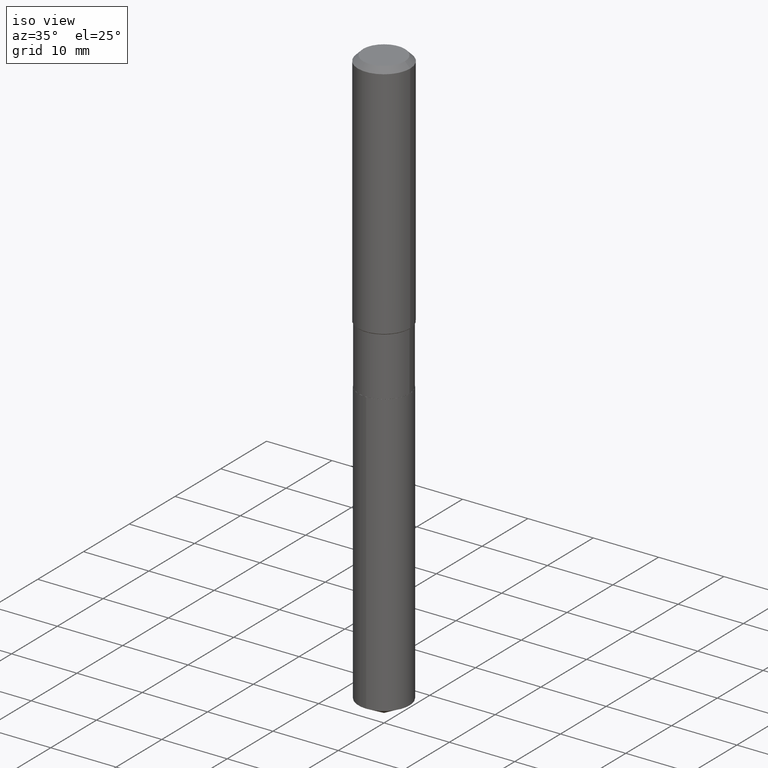
[diagram: clean part render]
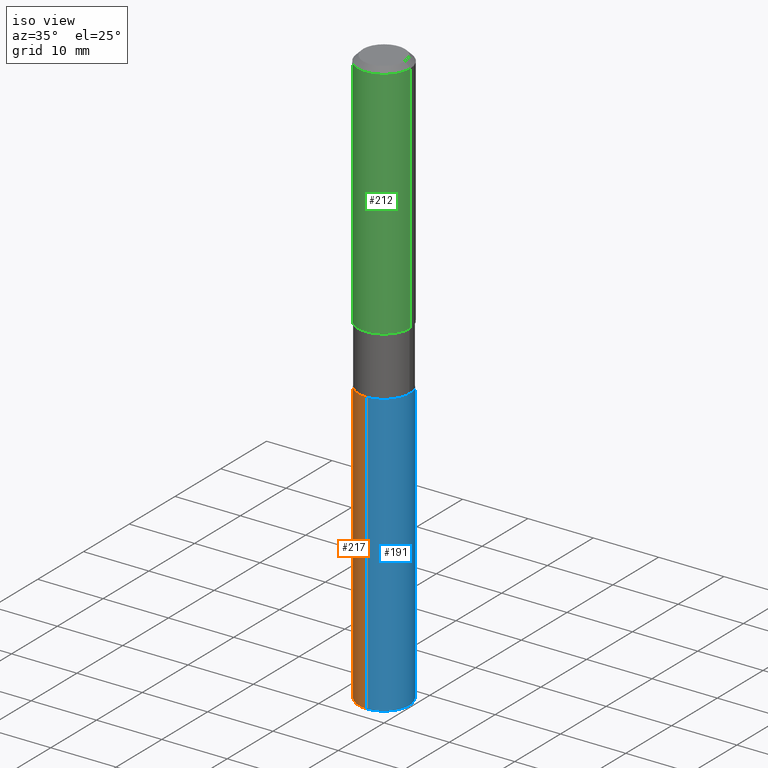
[diagram: same view with three faces highlighted in distinct colors, each labeled with its STEP entity id]
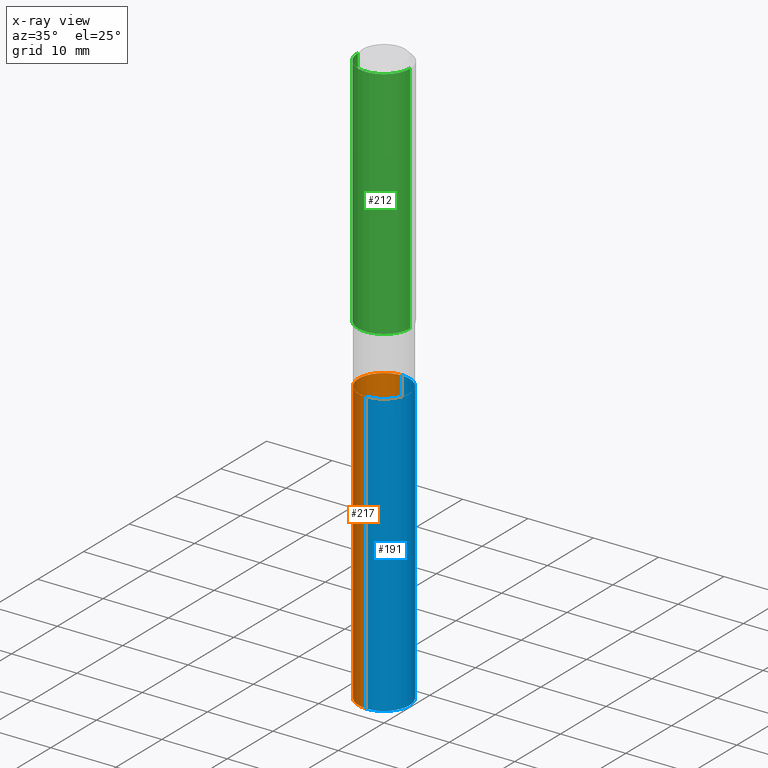
[diagram: x-ray of the same camera — body ghosted, the three highlighted faces saturated]
A machine part, iso view with three faces highlighted in distinct colors.
The next image is the same camera in x-ray (body ghosted, the three faces saturated) — at least one of them is partly hidden behind the body in this view.
Their STEP definitions:

[orange] entity #217 — the highlighted cylindrical surface (edge-blend (fillet) strip) has radius 3.9002 mm, axis along (-0, 0, 1).
#6 = DIRECTION ( 'NONE',  ( -2.445496404088996242E-29, 3.491441817074043371E-15, 1.000000000000000000 ) ) ;
#8 = AXIS2_PLACEMENT_3D ( 'NONE', #165, #206, #19 ) ;
#11 = LINE ( 'NONE', #198, #334 ) ;
#15 = EDGE_CURVE ( 'NONE', #282, #144, #66, .T. ) ;
#19 = DIRECTION ( 'NONE',  ( -6.982962677686265133E-15, -1.000000000000000000, 3.558252026915353702E-15 ) ) ;
#53 = CARTESIAN_POINT ( 'NONE',  ( -1.072233919158640357E-15, -0.1535500000000122045, -3.501056016768379742 ) ) ;
#66 = CIRCLE ( 'NONE', #297, 0.1535499999999999921 ) ;
#75 = AXIS2_PLACEMENT_3D ( 'NONE', #230, #6, #305 ) ;
#92 = CARTESIAN_POINT ( 'NONE',  ( -1.072233919158681970E-15, -0.1535500000000062926, -1.803199999999999470 ) ) ;
#99 = VERTEX_POINT ( 'NONE', #53 ) ;
#122 = LINE ( 'NONE', #160, #352 ) ;
#135 = ORIENTED_EDGE ( 'NONE', *, *, #240, .F. ) ;
#139 = EDGE_CURVE ( 'NONE', #99, #144, #11, .T. ) ;
#144 = VERTEX_POINT ( 'NONE', #92 ) ;
#147 = DIRECTION ( 'NONE',  ( -2.445496404088996242E-29, 3.491441817074043371E-15, 1.000000000000000000 ) ) ;
#151 = ORIENTED_EDGE ( 'NONE', *, *, #15, .F. ) ;
#158 = VERTEX_POINT ( 'NONE', #161 ) ;
#160 = CARTESIAN_POINT ( 'NONE',  ( 1.091038370759677758E-15, 0.1535499999999936915, -1.803200000000000580 ) ) ;
#161 = CARTESIAN_POINT ( 'NONE',  ( 1.091038370759719173E-15, 0.1535499999999877796, -3.501056016768380630 ) ) ;
#165 = CARTESIAN_POINT ( 'NONE',  ( 8.561770134980978882E-29, -1.222380464651785151E-14, -3.501056016768380186 ) ) ;
#189 = DIRECTION ( 'NONE',  ( -2.445496404088996242E-29, 3.491441817074043765E-15, 1.000000000000000000 ) ) ;
#198 = CARTESIAN_POINT ( 'NONE',  ( -1.072233919158681970E-15, -0.1535500000000062926, -1.803199999999999470 ) ) ;
#206 = DIRECTION ( 'NONE',  ( -2.445496404088996242E-29, 3.491441817074043371E-15, 1.000000000000000000 ) ) ;
#217 = ADVANCED_FACE ( 'NONE', ( #290 ), #425, .T. ) ;
#230 = CARTESIAN_POINT ( 'NONE',  ( 4.409669351313038346E-29, -6.295839150201959750E-15, -1.803200000000000136 ) ) ;
#237 = DIRECTION ( 'NONE',  ( -2.445496404088996242E-29, 3.491441817074043765E-15, 1.000000000000000000 ) ) ;
#240 = EDGE_CURVE ( 'NONE', #158, #282, #122, .T. ) ;
#277 = CIRCLE ( 'NONE', #8, 0.1535500000000000198 ) ;
#282 = VERTEX_POINT ( 'NONE', #449 ) ;
#290 = FACE_OUTER_BOUND ( 'NONE', #433, .T. ) ;
#297 = AXIS2_PLACEMENT_3D ( 'NONE', #369, #147, #411 ) ;
#305 = DIRECTION ( 'NONE',  ( -6.982962677686266711E-15, -1.000000000000000000, 3.558252026915354491E-15 ) ) ;
#329 = ORIENTED_EDGE ( 'NONE', *, *, #405, .T. ) ;
#334 = VECTOR ( 'NONE', #237, 39.37007874015748143 ) ;
#352 = VECTOR ( 'NONE', #189, 39.37007874015748143 ) ;
#366 = ORIENTED_EDGE ( 'NONE', *, *, #139, .T. ) ;
#369 = CARTESIAN_POINT ( 'NONE',  ( 4.409669351313038346E-29, -6.295839150201959750E-15, -1.803200000000000136 ) ) ;
#405 = EDGE_CURVE ( 'NONE', #158, #99, #277, .T. ) ;
#411 = DIRECTION ( 'NONE',  ( -6.982962677686266711E-15, -1.000000000000000000, 3.558252026915354491E-15 ) ) ;
#425 = CYLINDRICAL_SURFACE ( 'NONE', #75, 0.1535499999999999921 ) ;
#433 = EDGE_LOOP ( 'NONE', ( #135, #329, #366, #151 ) ) ;
#449 = CARTESIAN_POINT ( 'NONE',  ( 1.091038370759719765E-15, 0.1535499999999937193, -1.803200000000000580 ) ) ;

[blue] entity #191 — the highlighted cylindrical surface (edge-blend (fillet) strip) has radius 3.9002 mm, axis along (-0, 0, 1).
#11 = LINE ( 'NONE', #198, #334 ) ;
#42 = DIRECTION ( 'NONE',  ( -2.445496404088996242E-29, 3.491441817074043371E-15, 1.000000000000000000 ) ) ;
#52 = FACE_OUTER_BOUND ( 'NONE', #435, .T. ) ;
#53 = CARTESIAN_POINT ( 'NONE',  ( -1.072233919158640357E-15, -0.1535500000000122045, -3.501056016768379742 ) ) ;
#85 = EDGE_CURVE ( 'NONE', #99, #158, #221, .T. ) ;
#92 = CARTESIAN_POINT ( 'NONE',  ( -1.072233919158681970E-15, -0.1535500000000062926, -1.803199999999999470 ) ) ;
#95 = AXIS2_PLACEMENT_3D ( 'NONE', #270, #428, #423 ) ;
#99 = VERTEX_POINT ( 'NONE', #53 ) ;
#103 = ORIENTED_EDGE ( 'NONE', *, *, #240, .T. ) ;
#117 = DIRECTION ( 'NONE',  ( -2.445496404088996242E-29, 3.491441817074043371E-15, 1.000000000000000000 ) ) ;
#121 = ORIENTED_EDGE ( 'NONE', *, *, #293, .F. ) ;
#122 = LINE ( 'NONE', #160, #352 ) ;
#139 = EDGE_CURVE ( 'NONE', #99, #144, #11, .T. ) ;
#144 = VERTEX_POINT ( 'NONE', #92 ) ;
#158 = VERTEX_POINT ( 'NONE', #161 ) ;
#160 = CARTESIAN_POINT ( 'NONE',  ( 1.091038370759677758E-15, 0.1535499999999936915, -1.803200000000000580 ) ) ;
#161 = CARTESIAN_POINT ( 'NONE',  ( 1.091038370759719173E-15, 0.1535499999999877796, -3.501056016768380630 ) ) ;
#189 = DIRECTION ( 'NONE',  ( -2.445496404088996242E-29, 3.491441817074043765E-15, 1.000000000000000000 ) ) ;
#191 = ADVANCED_FACE ( 'NONE', ( #52 ), #464, .T. ) ;
#198 = CARTESIAN_POINT ( 'NONE',  ( -1.072233919158681970E-15, -0.1535500000000062926, -1.803199999999999470 ) ) ;
#221 = CIRCLE ( 'NONE', #288, 0.1535500000000000198 ) ;
#237 = DIRECTION ( 'NONE',  ( -2.445496404088996242E-29, 3.491441817074043765E-15, 1.000000000000000000 ) ) ;
#240 = EDGE_CURVE ( 'NONE', #158, #282, #122, .T. ) ;
#250 = ORIENTED_EDGE ( 'NONE', *, *, #139, .F. ) ;
#260 = DIRECTION ( 'NONE',  ( -6.982962677686265133E-15, -1.000000000000000000, 3.558252026915353702E-15 ) ) ;
#270 = CARTESIAN_POINT ( 'NONE',  ( 4.409669351313038346E-29, -6.295839150201959750E-15, -1.803200000000000136 ) ) ;
#282 = VERTEX_POINT ( 'NONE', #449 ) ;
#288 = AXIS2_PLACEMENT_3D ( 'NONE', #454, #117, #260 ) ;
#293 = EDGE_CURVE ( 'NONE', #144, #282, #427, .T. ) ;
#303 = ORIENTED_EDGE ( 'NONE', *, *, #85, .T. ) ;
#334 = VECTOR ( 'NONE', #237, 39.37007874015748143 ) ;
#345 = DIRECTION ( 'NONE',  ( -6.982962677686266711E-15, -1.000000000000000000, 3.558252026915354491E-15 ) ) ;
#352 = VECTOR ( 'NONE', #189, 39.37007874015748143 ) ;
#354 = AXIS2_PLACEMENT_3D ( 'NONE', #383, #42, #345 ) ;
#383 = CARTESIAN_POINT ( 'NONE',  ( 4.409669351313038346E-29, -6.295839150201959750E-15, -1.803200000000000136 ) ) ;
#423 = DIRECTION ( 'NONE',  ( -6.982962677686266711E-15, -1.000000000000000000, 3.558252026915354491E-15 ) ) ;
#427 = CIRCLE ( 'NONE', #354, 0.1535499999999999921 ) ;
#428 = DIRECTION ( 'NONE',  ( -2.445496404088996242E-29, 3.491441817074043371E-15, 1.000000000000000000 ) ) ;
#435 = EDGE_LOOP ( 'NONE', ( #303, #103, #121, #250 ) ) ;
#449 = CARTESIAN_POINT ( 'NONE',  ( 1.091038370759719765E-15, 0.1535499999999937193, -1.803200000000000580 ) ) ;
#454 = CARTESIAN_POINT ( 'NONE',  ( 8.561770134980978882E-29, -1.222380464651785151E-14, -3.501056016768380186 ) ) ;
#464 = CYLINDRICAL_SURFACE ( 'NONE', #95, 0.1535499999999999921 ) ;

[green] entity #212 — the highlighted cylindrical surface (edge-blend (fillet) strip) has radius 4.0005 mm, axis along (-0, 0, 1).
#5 = CARTESIAN_POINT ( 'NONE',  ( 0.1575000000000001676, -6.148673211769718717E-15, -1.446050000000000058 ) ) ;
#7 = VECTOR ( 'NONE', #409, 39.37007874015748143 ) ;
#10 = LINE ( 'NONE', #465, #388 ) ;
#14 = DIRECTION ( 'NONE',  ( 1.000000000000000000, -6.982962677686265922E-15, 0.000000000000000000 ) ) ;
#26 = ORIENTED_EDGE ( 'NONE', *, *, #393, .F. ) ;
#34 = DIRECTION ( 'NONE',  ( 1.000000000000000000, -6.982962677686267499E-15, 4.876176775795936353E-29 ) ) ;
#43 = AXIS2_PLACEMENT_3D ( 'NONE', #55, #204, #14 ) ;
#49 = CARTESIAN_POINT ( 'NONE',  ( 0.000000000000000000, 0.000000000000000000, 0.000000000000000000 ) ) ;
#55 = CARTESIAN_POINT ( 'NONE',  ( 7.703226739483226971E-31, -1.099816621735597538E-16, -0.03150000000000019451 ) ) ;
#63 = ORIENTED_EDGE ( 'NONE', *, *, #308, .T. ) ;
#97 = CARTESIAN_POINT ( 'NONE',  ( 0.1575000000000000011, -1.209798283909146741E-15, -0.03150000000000019451 ) ) ;
#98 = VERTEX_POINT ( 'NONE', #5 ) ;
#142 = VERTEX_POINT ( 'NONE', #267 ) ;
#146 = LINE ( 'NONE', #193, #7 ) ;
#156 = CARTESIAN_POINT ( 'NONE',  ( 3.536270167184016952E-29, -5.048856590034130447E-15, -1.446050000000000058 ) ) ;
#175 = VERTEX_POINT ( 'NONE', #350 ) ;
#186 = DIRECTION ( 'NONE',  ( -2.445468806185136597E-29, 3.491481338843145583E-15, 1.000000000000000000 ) ) ;
#193 = CARTESIAN_POINT ( 'NONE',  ( 0.1575000000000000844, -1.099816621735587677E-15, 7.679978421878603638E-30 ) ) ;
#195 = DIRECTION ( 'NONE',  ( -2.445468806185136597E-29, 3.491481338843145583E-15, 1.000000000000000000 ) ) ;
#204 = DIRECTION ( 'NONE',  ( -2.445468806185136597E-29, 3.491481338843145583E-15, 1.000000000000000000 ) ) ;
#212 = ADVANCED_FACE ( 'NONE', ( #378 ), #385, .T. ) ;
#218 = ORIENTED_EDGE ( 'NONE', *, *, #410, .F. ) ;
#251 = CIRCLE ( 'NONE', #43, 0.1575000000000000011 ) ;
#265 = AXIS2_PLACEMENT_3D ( 'NONE', #156, #186, #339 ) ;
#267 = CARTESIAN_POINT ( 'NONE',  ( -0.1575000000000000011, -1.460314317281686560E-15, -0.03150000000000019451 ) ) ;
#304 = CIRCLE ( 'NONE', #265, 0.1575000000000001676 ) ;
#308 = EDGE_CURVE ( 'NONE', #98, #441, #146, .T. ) ;
#326 = EDGE_LOOP ( 'NONE', ( #26, #482, #63, #218 ) ) ;
#331 = EDGE_CURVE ( 'NONE', #175, #98, #304, .T. ) ;
#339 = DIRECTION ( 'NONE',  ( 1.000000000000000000, -6.982962677686267499E-15, 0.000000000000000000 ) ) ;
#350 = CARTESIAN_POINT ( 'NONE',  ( -0.1575000000000001676, -3.929751781211971266E-15, -1.446050000000000058 ) ) ;
#363 = AXIS2_PLACEMENT_3D ( 'NONE', #49, #195, #34 ) ;
#378 = FACE_OUTER_BOUND ( 'NONE', #326, .T. ) ;
#385 = CYLINDRICAL_SURFACE ( 'NONE', #363, 0.1575000000000000844 ) ;
#388 = VECTOR ( 'NONE', #466, 39.37007874015748143 ) ;
#393 = EDGE_CURVE ( 'NONE', #175, #142, #10, .T. ) ;
#409 = DIRECTION ( 'NONE',  ( -2.445468806185136877E-29, 3.491481338843145188E-15, 1.000000000000000000 ) ) ;
#410 = EDGE_CURVE ( 'NONE', #142, #441, #251, .T. ) ;
#441 = VERTEX_POINT ( 'NONE', #97 ) ;
#465 = CARTESIAN_POINT ( 'NONE',  ( -0.1575000000000000844, 1.119104808822158392E-15, -7.747322767151481189E-30 ) ) ;
#466 = DIRECTION ( 'NONE',  ( -2.445468806185136877E-29, 3.491481338843145188E-15, 1.000000000000000000 ) ) ;
#482 = ORIENTED_EDGE ( 'NONE', *, *, #331, .T. ) ;